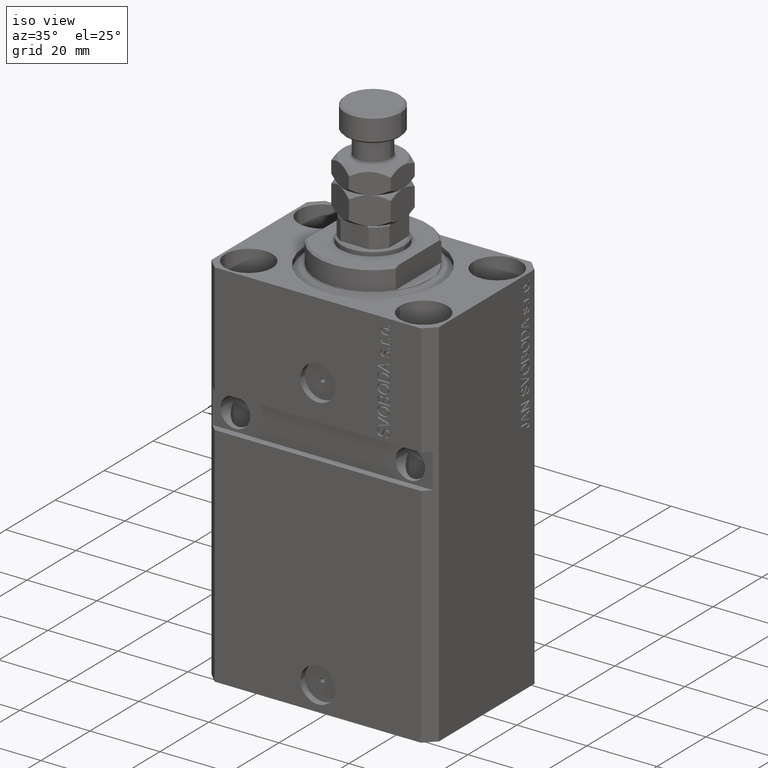
[diagram: clean part render]
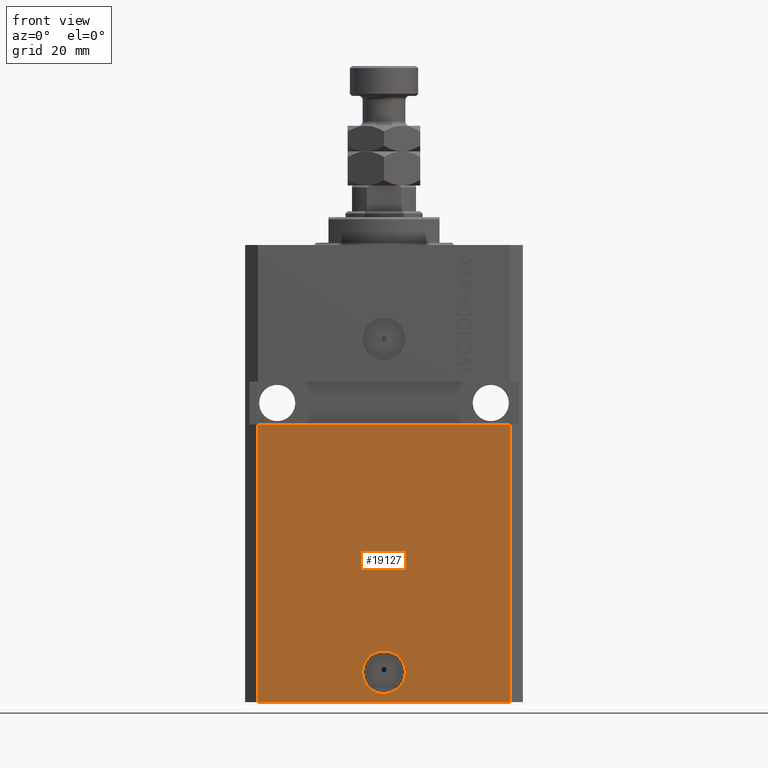
[diagram: tour spotlight — one face highlighted and labeled with its STEP entity id]
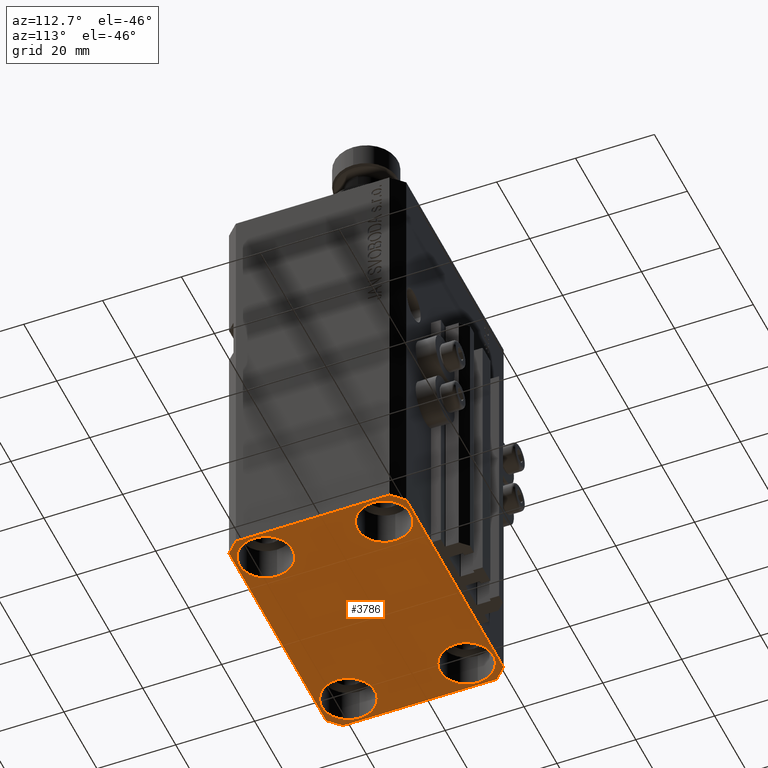
[diagram: tour spotlight — one face highlighted and labeled with its STEP entity id]
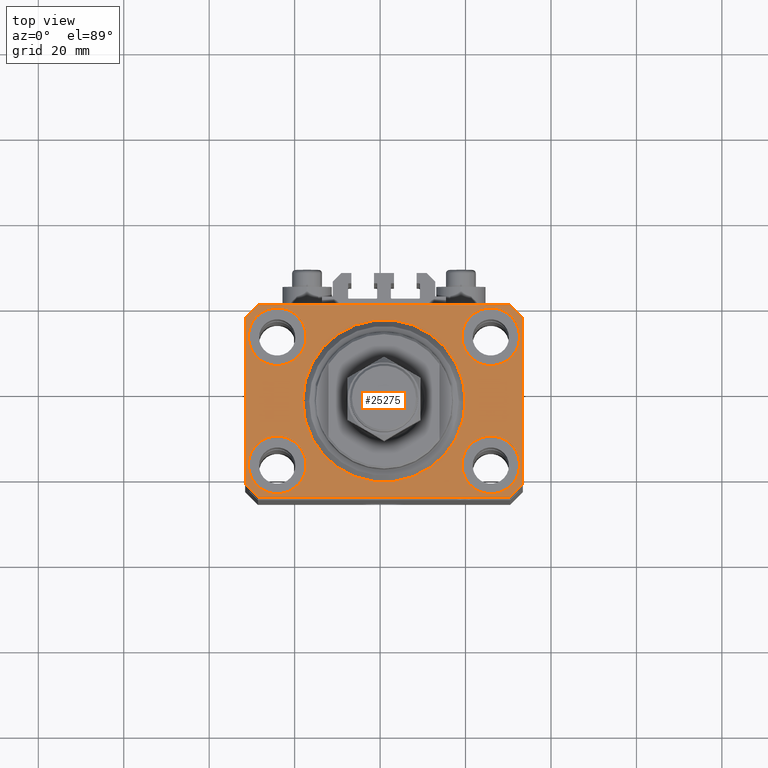
[diagram: tour spotlight — one face highlighted and labeled with its STEP entity id]
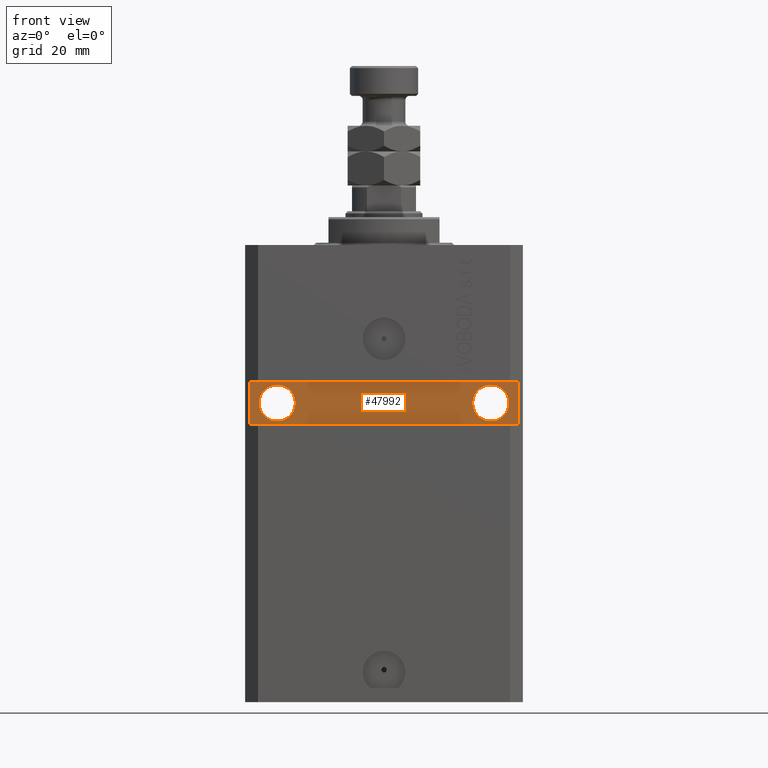
[diagram: tour spotlight — one face highlighted and labeled with its STEP entity id]
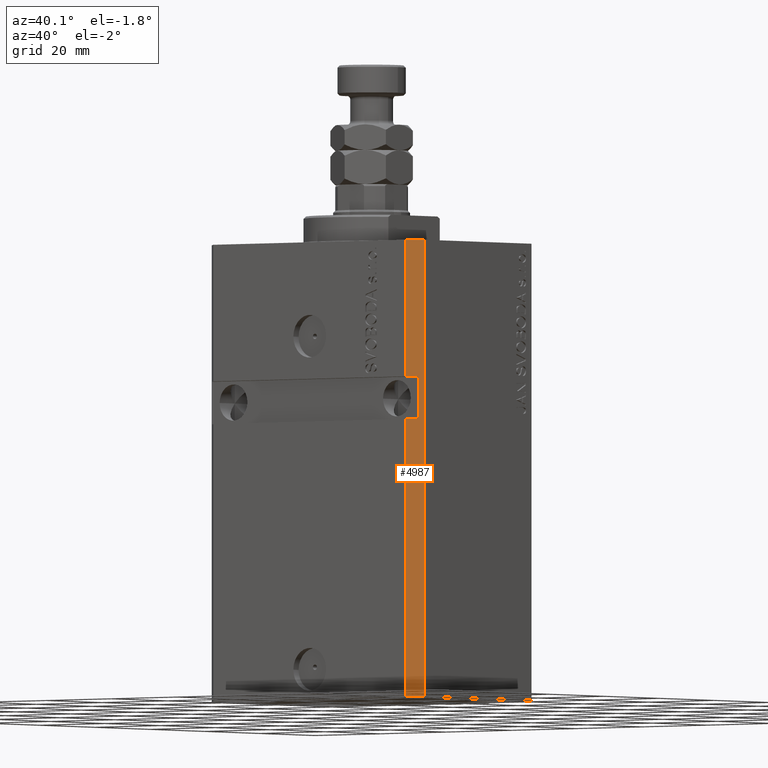
[diagram: tour spotlight — one face highlighted and labeled with its STEP entity id]
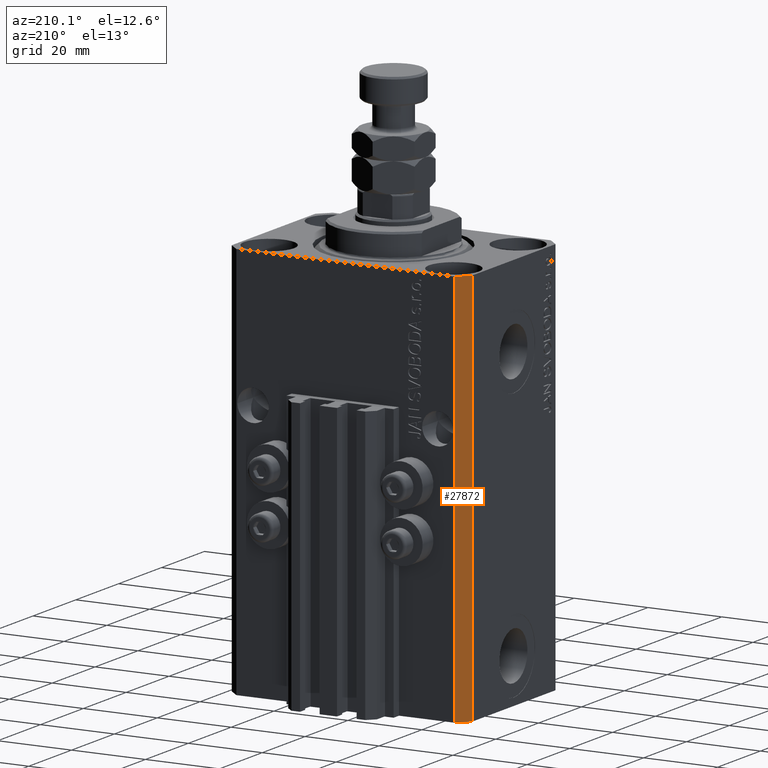
[diagram: tour spotlight — one face highlighted and labeled with its STEP entity id]
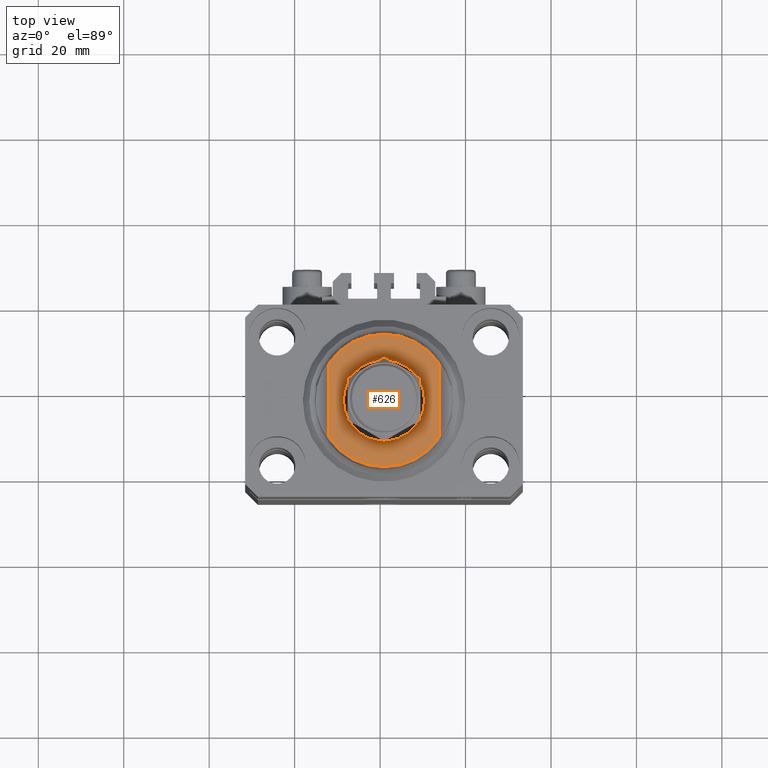
[diagram: tour spotlight — one face highlighted and labeled with its STEP entity id]
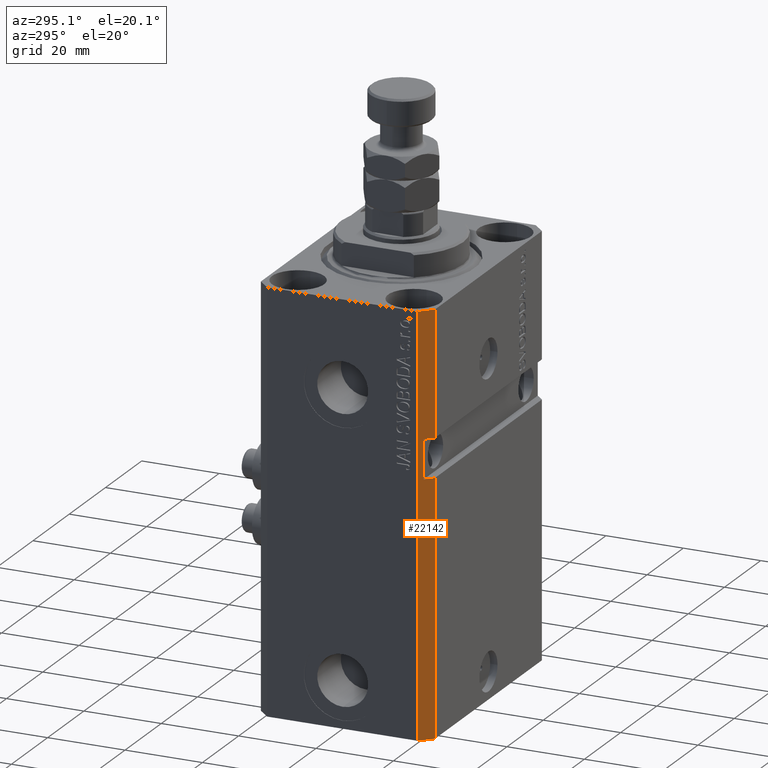
[diagram: tour spotlight — one face highlighted and labeled with its STEP entity id]
A machine part: a face-by-face anatomy tour. The part has 1119 B-rep faces; the first image is the clean iso view, then the 8 largest visible faces are spotlighted one at a time (largest first), each with its STEP entity span.

Face 1 — front view, entity #19127. In plain terms, the highlighted planar face has unit normal (0, -1, 0).
Definition (entity closure, byte-faithful):
#25 = EDGE_CURVE ( 'NONE', #38281, #33413, #42166, .T. ) ;
#1351 = LINE ( 'NONE', #31947, #32763 ) ;
#1925 = EDGE_CURVE ( 'NONE', #45138, #33413, #20716, .T. ) ;
#2029 = FACE_OUTER_BOUND ( 'NONE', #2823, .T. ) ;
#2816 = EDGE_CURVE ( 'NONE', #43977, #4943, #10225, .T. ) ;
#2823 = EDGE_LOOP ( 'NONE', ( #26663, #34010, #6631, #40306 ) ) ;
#2917 = DIRECTION ( 'NONE',  ( 1.176083712526788232E-16, -1.000000000000000000, 0.000000000000000000 ) ) ;
#3620 = AXIS2_PLACEMENT_3D ( 'NONE', #28186, #43004, #24245 ) ;
#4943 = VERTEX_POINT ( 'NONE', #41364 ) ;
#6610 = ORIENTED_EDGE ( 'NONE', *, *, #21915, .F. ) ;
#6631 = ORIENTED_EDGE ( 'NONE', *, *, #17645, .T. ) ;
#7059 = CARTESIAN_POINT ( 'NONE',  ( 29.49999999999650058, -22.49999999999949196, -41.99999999999998579 ) ) ;
#8112 = DIRECTION ( 'NONE',  ( 1.000000000000000000, 1.067522139062765303E-16, 1.067522139062765303E-16 ) ) ;
#9685 = FACE_BOUND ( 'NONE', #21582, .T. ) ;
#10183 = VECTOR ( 'NONE', #24154, 1000.000000000000000 ) ;
#10225 = CIRCLE ( 'NONE', #15740, 5.000000000000006217 ) ;
#11025 = CARTESIAN_POINT ( 'NONE',  ( -29.49999999999650413, -22.49999999999949907, -107.0000000000000000 ) ) ;
#12455 = AXIS2_PLACEMENT_3D ( 'NONE', #43840, #28774, #21384 ) ;
#15740 = AXIS2_PLACEMENT_3D ( 'NONE', #36725, #2917, #45355 ) ;
#16355 = CIRCLE ( 'NONE', #12455, 5.000000000000006217 ) ;
#17645 = EDGE_CURVE ( 'NONE', #35961, #45138, #37644, .T. ) ;
#17823 = EDGE_CURVE ( 'NONE', #35961, #38281, #1351, .T. ) ;
#18004 = VECTOR ( 'NONE', #8112, 1000.000000000000000 ) ;
#19127 = ADVANCED_FACE ( 'NONE', ( #9685, #2029 ), #32135, .T. ) ;
#19542 = CARTESIAN_POINT ( 'NONE',  ( -29.49999999999650413, -22.49999999999949907, -41.99999999999999289 ) ) ;
#19960 = CARTESIAN_POINT ( 'NONE',  ( -32.49999999999650413, -22.49999999999949907, -41.99999999999999289 ) ) ;
#20716 = LINE ( 'NONE', #42682, #10183 ) ;
#21384 = DIRECTION ( 'NONE',  ( 1.000000000000000000, 0.000000000000000000, 0.000000000000000000 ) ) ;
#21582 = EDGE_LOOP ( 'NONE', ( #32540, #6610 ) ) ;
#21915 = EDGE_CURVE ( 'NONE', #4943, #43977, #16355, .T. ) ;
#24154 = DIRECTION ( 'NONE',  ( 0.000000000000000000, 0.000000000000000000, 1.000000000000000000 ) ) ;
#24245 = DIRECTION ( 'NONE',  ( 1.000000000000000000, 1.176083712526788232E-16, 0.000000000000000000 ) ) ;
#26293 = DIRECTION ( 'NONE',  ( 1.000000000000000000, 1.176083712526788232E-16, 0.000000000000000000 ) ) ;
#26663 = ORIENTED_EDGE ( 'NONE', *, *, #25, .F. ) ;
#27757 = DIRECTION ( 'NONE',  ( 0.000000000000000000, 0.000000000000000000, 1.000000000000000000 ) ) ;
#28186 = CARTESIAN_POINT ( 'NONE',  ( -29.49999999999650413, -22.49999999999949907, -107.0000000000000000 ) ) ;
#28774 = DIRECTION ( 'NONE',  ( 1.176083712526788232E-16, -1.000000000000000000, 0.000000000000000000 ) ) ;
#31947 = CARTESIAN_POINT ( 'NONE',  ( -29.49999999999650413, -22.49999999999949907, -107.0000000000000000 ) ) ;
#32135 = PLANE ( 'NONE',  #3620 ) ;
#32540 = ORIENTED_EDGE ( 'NONE', *, *, #2816, .F. ) ;
#32763 = VECTOR ( 'NONE', #27757, 1000.000000000000000 ) ;
#33413 = VERTEX_POINT ( 'NONE', #7059 ) ;
#34010 = ORIENTED_EDGE ( 'NONE', *, *, #17823, .F. ) ;
#35961 = VERTEX_POINT ( 'NONE', #39204 ) ;
#36725 = CARTESIAN_POINT ( 'NONE',  ( 2.646188353185214061E-15, -22.49999999999949551, -99.99999999999998579 ) ) ;
#37009 = VECTOR ( 'NONE', #26293, 1000.000000000000000 ) ;
#37644 = LINE ( 'NONE', #11025, #37009 ) ;
#38281 = VERTEX_POINT ( 'NONE', #19542 ) ;
#39094 = CARTESIAN_POINT ( 'NONE',  ( 29.49999999999650413, -22.49999999999949196, -107.0000000000000000 ) ) ;
#39204 = CARTESIAN_POINT ( 'NONE',  ( -29.49999999999650413, -22.49999999999949907, -107.0000000000000000 ) ) ;
#40053 = CARTESIAN_POINT ( 'NONE',  ( 5.000000000000008882, -22.49999999999949551, -99.99999999999998579 ) ) ;
#40306 = ORIENTED_EDGE ( 'NONE', *, *, #1925, .T. ) ;
#41364 = CARTESIAN_POINT ( 'NONE',  ( -5.000000000000003553, -22.49999999999949551, -99.99999999999998579 ) ) ;
#42166 = LINE ( 'NONE', #19960, #18004 ) ;
#42682 = CARTESIAN_POINT ( 'NONE',  ( 29.49999999999650413, -22.49999999999949196, -107.0000000000000000 ) ) ;
#43004 = DIRECTION ( 'NONE',  ( 1.176083712526788232E-16, -1.000000000000000000, 0.000000000000000000 ) ) ;
#43840 = CARTESIAN_POINT ( 'NONE',  ( 2.646188353185214061E-15, -22.49999999999949551, -99.99999999999998579 ) ) ;
#43977 = VERTEX_POINT ( 'NONE', #40053 ) ;
#45138 = VERTEX_POINT ( 'NONE', #39094 ) ;
#45355 = DIRECTION ( 'NONE',  ( 1.000000000000000000, 0.000000000000000000, 0.000000000000000000 ) ) ;

Face 2 — auxiliary view, entity #3786. In plain terms, the highlighted planar face has unit normal (0, 0, 1).
Definition (entity closure, byte-faithful):
#649 = CIRCLE ( 'NONE', #21168, 6.750000000022533087 ) ;
#694 = CARTESIAN_POINT ( 'NONE',  ( -32.49999999999650413, 19.49999999999949907, -107.0000000000000000 ) ) ;
#853 = DIRECTION ( 'NONE',  ( -0.000000000000000000, -0.000000000000000000, 1.000000000000000000 ) ) ;
#1150 = DIRECTION ( 'NONE',  ( 1.334402673828349134E-14, 1.000000000000000000, 0.000000000000000000 ) ) ;
#1343 = VERTEX_POINT ( 'NONE', #19187 ) ;
#1506 = CARTESIAN_POINT ( 'NONE',  ( -18.24999999997747224, 15.00000000000000000, -107.0000000000000000 ) ) ;
#1633 = CARTESIAN_POINT ( 'NONE',  ( -32.49999999999650413, 19.49999999999949907, -107.0000000000000000 ) ) ;
#1689 = LINE ( 'NONE', #16754, #35445 ) ;
#1849 = EDGE_LOOP ( 'NONE', ( #48109, #18813 ) ) ;
#1872 = AXIS2_PLACEMENT_3D ( 'NONE', #5205, #20275, #24450 ) ;
#2190 = AXIS2_PLACEMENT_3D ( 'NONE', #31208, #24045, #35882 ) ;
#2299 = ORIENTED_EDGE ( 'NONE', *, *, #16974, .F. ) ;
#2421 = VERTEX_POINT ( 'NONE', #5523 ) ;
#2687 = EDGE_CURVE ( 'NONE', #29800, #5790, #30670, .T. ) ;
#3407 = FACE_OUTER_BOUND ( 'NONE', #9077, .T. ) ;
#3786 = ADVANCED_FACE ( 'NONE', ( #37219, #37455, #42330, #14763, #3407 ), #48329, .F. ) ;
#3890 = DIRECTION ( 'NONE',  ( 1.000000000000000000, 0.000000000000000000, -0.000000000000000000 ) ) ;
#4121 = CARTESIAN_POINT ( 'NONE',  ( -31.75000000002253842, 15.00000000000000000, -107.0000000000000000 ) ) ;
#4230 = ORIENTED_EDGE ( 'NONE', *, *, #17645, .F. ) ;
#4363 = EDGE_CURVE ( 'NONE', #31060, #20091, #649, .T. ) ;
#5205 = CARTESIAN_POINT ( 'NONE',  ( -25.00000000000000355, 15.00000000000000000, -107.0000000000000000 ) ) ;
#5523 = CARTESIAN_POINT ( 'NONE',  ( 29.49999999999707967, 22.49999999999951328, -107.0000000000000000 ) ) ;
#5790 = VERTEX_POINT ( 'NONE', #30739 ) ;
#5819 = CARTESIAN_POINT ( 'NONE',  ( 32.49999999999651124, -19.49999999999949196, -107.0000000000000000 ) ) ;
#6037 = VECTOR ( 'NONE', #22686, 1000.000000000000000 ) ;
#6180 = EDGE_CURVE ( 'NONE', #8314, #11901, #45310, .T. ) ;
#6569 = CIRCLE ( 'NONE', #20750, 6.749999999958452790 ) ;
#6683 = AXIS2_PLACEMENT_3D ( 'NONE', #16398, #853, #16155 ) ;
#7247 = CARTESIAN_POINT ( 'NONE',  ( 32.49999999999702993, 19.49999999999945999, -107.0000000000000000 ) ) ;
#7923 = EDGE_CURVE ( 'NONE', #11901, #8314, #28030, .T. ) ;
#8314 = VERTEX_POINT ( 'NONE', #8583 ) ;
#8414 = VECTOR ( 'NONE', #1150, 1000.000000000000000 ) ;
#8583 = CARTESIAN_POINT ( 'NONE',  ( 18.25000000002253842, -15.00000000000000000, -107.0000000000000000 ) ) ;
#8584 = AXIS2_PLACEMENT_3D ( 'NONE', #34057, #46388, #23183 ) ;
#8945 = CIRCLE ( 'NONE', #1872, 6.750000000022533087 ) ;
#9043 = LINE ( 'NONE', #42624, #30178 ) ;
#9077 = EDGE_LOOP ( 'NONE', ( #2299, #19034, #46622, #46412, #4230, #46440, #10900, #16723 ) ) ;
#9843 = EDGE_CURVE ( 'NONE', #25213, #2421, #23405, .T. ) ;
#10103 = VERTEX_POINT ( 'NONE', #1633 ) ;
#10900 = ORIENTED_EDGE ( 'NONE', *, *, #42466, .F. ) ;
#11025 = CARTESIAN_POINT ( 'NONE',  ( -29.49999999999650413, -22.49999999999949907, -107.0000000000000000 ) ) ;
#11038 = AXIS2_PLACEMENT_3D ( 'NONE', #26345, #14524, #3890 ) ;
#11326 = CARTESIAN_POINT ( 'NONE',  ( -29.49999999999650413, 22.49999999999949907, -107.0000000000000000 ) ) ;
#11901 = VERTEX_POINT ( 'NONE', #14908 ) ;
#13548 = CARTESIAN_POINT ( 'NONE',  ( -31.75000000004154899, -15.00000000000000000, -107.0000000000000000 ) ) ;
#13784 = ORIENTED_EDGE ( 'NONE', *, *, #4363, .T. ) ;
#14524 = DIRECTION ( 'NONE',  ( 0.000000000000000000, 0.000000000000000000, 1.000000000000000000 ) ) ;
#14763 = FACE_BOUND ( 'NONE', #27245, .T. ) ;
#14908 = CARTESIAN_POINT ( 'NONE',  ( 31.74999999997746869, -15.00000000000000000, -107.0000000000000000 ) ) ;
#15092 = DIRECTION ( 'NONE',  ( -0.000000000000000000, -0.000000000000000000, 1.000000000000000000 ) ) ;
#15263 = CARTESIAN_POINT ( 'NONE',  ( -18.24999999995845812, -15.00000000000000000, -107.0000000000000000 ) ) ;
#15435 = VERTEX_POINT ( 'NONE', #47161 ) ;
#15556 = DIRECTION ( 'NONE',  ( 1.000000000000000000, 0.000000000000000000, 0.000000000000000000 ) ) ;
#15828 = CARTESIAN_POINT ( 'NONE',  ( 24.99999999999999645, 15.00000000000000888, -107.0000000000000000 ) ) ;
#15996 = LINE ( 'NONE', #694, #39661 ) ;
#16155 = DIRECTION ( 'NONE',  ( 1.000000000000000000, 0.000000000000000000, 0.000000000000000000 ) ) ;
#16398 = CARTESIAN_POINT ( 'NONE',  ( 25.00000000000000355, -15.00000000000000000, -107.0000000000000000 ) ) ;
#16723 = ORIENTED_EDGE ( 'NONE', *, *, #46933, .F. ) ;
#16754 = CARTESIAN_POINT ( 'NONE',  ( -32.49999999999650413, -19.49999999999949907, -107.0000000000000000 ) ) ;
#16974 = EDGE_CURVE ( 'NONE', #2421, #15435, #40806, .T. ) ;
#17300 = ORIENTED_EDGE ( 'NONE', *, *, #42248, .T. ) ;
#17645 = EDGE_CURVE ( 'NONE', #35961, #45138, #37644, .T. ) ;
#18691 = CARTESIAN_POINT ( 'NONE',  ( -25.00000000000000355, -15.00000000000000000, -107.0000000000000000 ) ) ;
#18813 = ORIENTED_EDGE ( 'NONE', *, *, #7923, .T. ) ;
#19034 = ORIENTED_EDGE ( 'NONE', *, *, #9843, .F. ) ;
#19187 = CARTESIAN_POINT ( 'NONE',  ( 32.49999999999651124, -19.49999999999949196, -107.0000000000000000 ) ) ;
#19429 = DIRECTION ( 'NONE',  ( 0.7071067811865483499, 0.7071067811865466846, 0.000000000000000000 ) ) ;
#19471 = CARTESIAN_POINT ( 'NONE',  ( 32.49999999999702993, 19.49999999999945999, -107.0000000000000000 ) ) ;
#20016 = CARTESIAN_POINT ( 'NONE',  ( 18.25000000004154543, 15.00000000000000888, -107.0000000000000000 ) ) ;
#20091 = VERTEX_POINT ( 'NONE', #1506 ) ;
#20275 = DIRECTION ( 'NONE',  ( -0.000000000000000000, -0.000000000000000000, 1.000000000000000000 ) ) ;
#20406 = LINE ( 'NONE', #5819, #8414 ) ;
#20750 = AXIS2_PLACEMENT_3D ( 'NONE', #15828, #24196, #42958 ) ;
#20773 = EDGE_CURVE ( 'NONE', #1343, #25213, #20406, .T. ) ;
#21168 = AXIS2_PLACEMENT_3D ( 'NONE', #34301, #26657, #15556 ) ;
#21904 = DIRECTION ( 'NONE',  ( 1.000000000000000000, 0.000000000000000000, 0.000000000000000000 ) ) ;
#22082 = EDGE_CURVE ( 'NONE', #27799, #46885, #43164, .T. ) ;
#22359 = CIRCLE ( 'NONE', #41288, 6.750000000041541881 ) ;
#22686 = DIRECTION ( 'NONE',  ( -0.7071067811865352493, 0.7071067811865597852, 0.000000000000000000 ) ) ;
#23172 = ORIENTED_EDGE ( 'NONE', *, *, #40643, .T. ) ;
#23183 = DIRECTION ( 'NONE',  ( 1.000000000000000000, 0.000000000000000000, 0.000000000000000000 ) ) ;
#23405 = LINE ( 'NONE', #19471, #6037 ) ;
#23418 = EDGE_LOOP ( 'NONE', ( #26202, #23172 ) ) ;
#24045 = DIRECTION ( 'NONE',  ( -0.000000000000000000, -0.000000000000000000, 1.000000000000000000 ) ) ;
#24196 = DIRECTION ( 'NONE',  ( -0.000000000000000000, -0.000000000000000000, 1.000000000000000000 ) ) ;
#24450 = DIRECTION ( 'NONE',  ( 1.000000000000000000, 0.000000000000000000, 0.000000000000000000 ) ) ;
#25213 = VERTEX_POINT ( 'NONE', #7247 ) ;
#26202 = ORIENTED_EDGE ( 'NONE', *, *, #22082, .T. ) ;
#26293 = DIRECTION ( 'NONE',  ( 1.000000000000000000, 1.176083712526788232E-16, 0.000000000000000000 ) ) ;
#26345 = CARTESIAN_POINT ( 'NONE',  ( 0.000000000000000000, 0.000000000000000000, -107.0000000000000000 ) ) ;
#26614 = ORIENTED_EDGE ( 'NONE', *, *, #40038, .T. ) ;
#26657 = DIRECTION ( 'NONE',  ( -0.000000000000000000, -0.000000000000000000, 1.000000000000000000 ) ) ;
#27131 = EDGE_CURVE ( 'NONE', #44919, #35961, #1689, .T. ) ;
#27245 = EDGE_LOOP ( 'NONE', ( #13784, #26614 ) ) ;
#27799 = VERTEX_POINT ( 'NONE', #13548 ) ;
#28030 = CIRCLE ( 'NONE', #29620, 6.749999999977465137 ) ;
#29212 = EDGE_LOOP ( 'NONE', ( #48676, #17300 ) ) ;
#29620 = AXIS2_PLACEMENT_3D ( 'NONE', #37530, #15092, #41734 ) ;
#29800 = VERTEX_POINT ( 'NONE', #20016 ) ;
#30080 = VECTOR ( 'NONE', #36377, 1000.000000000000000 ) ;
#30178 = VECTOR ( 'NONE', #19429, 1000.000000000000000 ) ;
#30670 = CIRCLE ( 'NONE', #8584, 6.749999999958452790 ) ;
#30739 = CARTESIAN_POINT ( 'NONE',  ( 31.74999999995845101, 15.00000000000000888, -107.0000000000000000 ) ) ;
#31060 = VERTEX_POINT ( 'NONE', #4121 ) ;
#31208 = CARTESIAN_POINT ( 'NONE',  ( -25.00000000000000355, -15.00000000000000000, -107.0000000000000000 ) ) ;
#31288 = DIRECTION ( 'NONE',  ( 0.000000000000000000, -1.000000000000000000, 0.000000000000000000 ) ) ;
#31798 = DIRECTION ( 'NONE',  ( 0.7071067811865474617, -0.7071067811865474617, 0.000000000000000000 ) ) ;
#34057 = CARTESIAN_POINT ( 'NONE',  ( 24.99999999999999645, 15.00000000000000888, -107.0000000000000000 ) ) ;
#34301 = CARTESIAN_POINT ( 'NONE',  ( -25.00000000000000355, 15.00000000000000000, -107.0000000000000000 ) ) ;
#35445 = VECTOR ( 'NONE', #31798, 1000.000000000000114 ) ;
#35637 = CARTESIAN_POINT ( 'NONE',  ( -32.49999999999650413, -19.49999999999949907, -107.0000000000000000 ) ) ;
#35882 = DIRECTION ( 'NONE',  ( 1.000000000000000000, 0.000000000000000000, 0.000000000000000000 ) ) ;
#35961 = VERTEX_POINT ( 'NONE', #39204 ) ;
#36377 = DIRECTION ( 'NONE',  ( -1.000000000000000000, -2.352167425053553784E-16, 0.000000000000000000 ) ) ;
#37009 = VECTOR ( 'NONE', #26293, 1000.000000000000000 ) ;
#37219 = FACE_BOUND ( 'NONE', #23418, .T. ) ;
#37455 = FACE_BOUND ( 'NONE', #1849, .T. ) ;
#37530 = CARTESIAN_POINT ( 'NONE',  ( 25.00000000000000355, -15.00000000000000000, -107.0000000000000000 ) ) ;
#37644 = LINE ( 'NONE', #11025, #37009 ) ;
#37952 = DIRECTION ( 'NONE',  ( -0.7071067811865474617, -0.7071067811865474617, 0.000000000000000000 ) ) ;
#39094 = CARTESIAN_POINT ( 'NONE',  ( 29.49999999999650413, -22.49999999999949196, -107.0000000000000000 ) ) ;
#39204 = CARTESIAN_POINT ( 'NONE',  ( -29.49999999999650413, -22.49999999999949907, -107.0000000000000000 ) ) ;
#39661 = VECTOR ( 'NONE', #31288, 1000.000000000000000 ) ;
#40038 = EDGE_CURVE ( 'NONE', #20091, #31060, #8945, .T. ) ;
#40643 = EDGE_CURVE ( 'NONE', #46885, #27799, #22359, .T. ) ;
#40806 = LINE ( 'NONE', #43779, #30080 ) ;
#41288 = AXIS2_PLACEMENT_3D ( 'NONE', #18691, #45098, #21904 ) ;
#41701 = EDGE_CURVE ( 'NONE', #45138, #1343, #9043, .T. ) ;
#41734 = DIRECTION ( 'NONE',  ( 1.000000000000000000, 0.000000000000000000, 0.000000000000000000 ) ) ;
#41903 = LINE ( 'NONE', #11326, #45442 ) ;
#42248 = EDGE_CURVE ( 'NONE', #5790, #29800, #6569, .T. ) ;
#42330 = FACE_BOUND ( 'NONE', #29212, .T. ) ;
#42466 = EDGE_CURVE ( 'NONE', #10103, #44919, #15996, .T. ) ;
#42624 = CARTESIAN_POINT ( 'NONE',  ( 29.49999999999650413, -22.49999999999949196, -107.0000000000000000 ) ) ;
#42958 = DIRECTION ( 'NONE',  ( 1.000000000000000000, 0.000000000000000000, 0.000000000000000000 ) ) ;
#43164 = CIRCLE ( 'NONE', #2190, 6.750000000041541881 ) ;
#43779 = CARTESIAN_POINT ( 'NONE',  ( 29.49999999999707967, 22.49999999999951328, -107.0000000000000000 ) ) ;
#44919 = VERTEX_POINT ( 'NONE', #35637 ) ;
#45098 = DIRECTION ( 'NONE',  ( -0.000000000000000000, -0.000000000000000000, 1.000000000000000000 ) ) ;
#45138 = VERTEX_POINT ( 'NONE', #39094 ) ;
#45310 = CIRCLE ( 'NONE', #6683, 6.749999999977465137 ) ;
#45442 = VECTOR ( 'NONE', #37952, 1000.000000000000114 ) ;
#46388 = DIRECTION ( 'NONE',  ( -0.000000000000000000, -0.000000000000000000, 1.000000000000000000 ) ) ;
#46412 = ORIENTED_EDGE ( 'NONE', *, *, #41701, .F. ) ;
#46440 = ORIENTED_EDGE ( 'NONE', *, *, #27131, .F. ) ;
#46622 = ORIENTED_EDGE ( 'NONE', *, *, #20773, .F. ) ;
#46885 = VERTEX_POINT ( 'NONE', #15263 ) ;
#46933 = EDGE_CURVE ( 'NONE', #15435, #10103, #41903, .T. ) ;
#47161 = CARTESIAN_POINT ( 'NONE',  ( -29.49999999999650413, 22.49999999999949907, -107.0000000000000000 ) ) ;
#48109 = ORIENTED_EDGE ( 'NONE', *, *, #6180, .T. ) ;
#48329 = PLANE ( 'NONE',  #11038 ) ;
#48676 = ORIENTED_EDGE ( 'NONE', *, *, #2687, .T. ) ;

Face 3 — top view, entity #25275. In plain terms, the highlighted planar face has unit normal (0, 0, 1).
Definition (entity closure, byte-faithful):
#510 = AXIS2_PLACEMENT_3D ( 'NONE', #25415, #37011, #48854 ) ;
#987 = VERTEX_POINT ( 'NONE', #40721 ) ;
#1227 = ORIENTED_EDGE ( 'NONE', *, *, #3697, .T. ) ;
#1610 = DIRECTION ( 'NONE',  ( -1.000000000000000000, -2.352167425053553784E-16, 0.000000000000000000 ) ) ;
#3064 = CARTESIAN_POINT ( 'NONE',  ( 18.25000000002253842, -15.00000000000000000, 0.000000000000000000 ) ) ;
#3421 = CARTESIAN_POINT ( 'NONE',  ( 29.49999999999707967, 22.49999999999951328, 0.000000000000000000 ) ) ;
#3545 = DIRECTION ( 'NONE',  ( 0.000000000000000000, 0.000000000000000000, 1.000000000000000000 ) ) ;
#3697 = EDGE_CURVE ( 'NONE', #12005, #987, #10586, .T. ) ;
#3902 = CARTESIAN_POINT ( 'NONE',  ( 32.49999999999702993, 19.49999999999945999, 0.000000000000000000 ) ) ;
#4578 = EDGE_CURVE ( 'NONE', #987, #32467, #27629, .T. ) ;
#4955 = CARTESIAN_POINT ( 'NONE',  ( 29.49999999999707967, 22.49999999999951328, 0.000000000000000000 ) ) ;
#5004 = CARTESIAN_POINT ( 'NONE',  ( -29.49999999999650413, -22.49999999999949907, 0.000000000000000000 ) ) ;
#5102 = DIRECTION ( 'NONE',  ( 0.000000000000000000, -1.000000000000000000, 0.000000000000000000 ) ) ;
#5433 = CARTESIAN_POINT ( 'NONE',  ( -29.49999999999650413, -22.49999999999949907, 0.000000000000000000 ) ) ;
#5438 = DIRECTION ( 'NONE',  ( 0.000000000000000000, 0.000000000000000000, 1.000000000000000000 ) ) ;
#5824 = ORIENTED_EDGE ( 'NONE', *, *, #15948, .T. ) ;
#6019 = DIRECTION ( 'NONE',  ( 0.000000000000000000, 0.000000000000000000, 1.000000000000000000 ) ) ;
#6603 = EDGE_CURVE ( 'NONE', #19524, #30904, #12277, .T. ) ;
#7078 = AXIS2_PLACEMENT_3D ( 'NONE', #44286, #6019, #36631 ) ;
#7575 = CARTESIAN_POINT ( 'NONE',  ( 25.00000000000000355, -15.00000000000000000, 0.000000000000000000 ) ) ;
#7766 = VECTOR ( 'NONE', #20239, 1000.000000000000000 ) ;
#8117 = ORIENTED_EDGE ( 'NONE', *, *, #6603, .T. ) ;
#8919 = VERTEX_POINT ( 'NONE', #36036 ) ;
#9115 = CARTESIAN_POINT ( 'NONE',  ( 32.49999999999651124, -19.49999999999949196, 0.000000000000000000 ) ) ;
#9271 = AXIS2_PLACEMENT_3D ( 'NONE', #38867, #46756, #16899 ) ;
#9751 = EDGE_CURVE ( 'NONE', #12539, #30613, #19440, .T. ) ;
#9859 = CARTESIAN_POINT ( 'NONE',  ( 19.00000000000000000, 0.000000000000000000, 0.000000000000000000 ) ) ;
#10374 = ORIENTED_EDGE ( 'NONE', *, *, #37607, .F. ) ;
#10376 = CIRCLE ( 'NONE', #13510, 6.749999999977465137 ) ;
#10539 = ORIENTED_EDGE ( 'NONE', *, *, #4578, .T. ) ;
#10586 = LINE ( 'NONE', #45113, #28347 ) ;
#11081 = CARTESIAN_POINT ( 'NONE',  ( 18.25000000004154543, 15.00000000000000888, 0.000000000000000000 ) ) ;
#11224 = FACE_BOUND ( 'NONE', #16169, .T. ) ;
#11532 = DIRECTION ( 'NONE',  ( 1.000000000000000000, 0.000000000000000000, 0.000000000000000000 ) ) ;
#12005 = VERTEX_POINT ( 'NONE', #34868 ) ;
#12277 = LINE ( 'NONE', #19923, #31170 ) ;
#12375 = EDGE_LOOP ( 'NONE', ( #28256, #19365 ) ) ;
#12539 = VERTEX_POINT ( 'NONE', #3064 ) ;
#12584 = EDGE_CURVE ( 'NONE', #24502, #41217, #29952, .T. ) ;
#12704 = CIRCLE ( 'NONE', #43409, 6.750000000022533087 ) ;
#12739 = VECTOR ( 'NONE', #37443, 1000.000000000000114 ) ;
#12745 = EDGE_CURVE ( 'NONE', #14359, #12005, #23759, .T. ) ;
#13012 = EDGE_CURVE ( 'NONE', #41217, #24502, #28362, .T. ) ;
#13510 = AXIS2_PLACEMENT_3D ( 'NONE', #7575, #30042, #15248 ) ;
#14359 = VERTEX_POINT ( 'NONE', #5433 ) ;
#14855 = EDGE_CURVE ( 'NONE', #8919, #21812, #12704, .T. ) ;
#14881 = CARTESIAN_POINT ( 'NONE',  ( 0.000000000000000000, 0.000000000000000000, 0.000000000000000000 ) ) ;
#15161 = FACE_BOUND ( 'NONE', #24491, .T. ) ;
#15248 = DIRECTION ( 'NONE',  ( 1.000000000000000000, 0.000000000000000000, 0.000000000000000000 ) ) ;
#15472 = CARTESIAN_POINT ( 'NONE',  ( -25.00000000000000355, 15.00000000000000000, 0.000000000000000000 ) ) ;
#15795 = ORIENTED_EDGE ( 'NONE', *, *, #15861, .F. ) ;
#15861 = EDGE_CURVE ( 'NONE', #30613, #12539, #10376, .T. ) ;
#15923 = DIRECTION ( 'NONE',  ( 0.7071067811865483499, 0.7071067811865466846, 0.000000000000000000 ) ) ;
#15948 = EDGE_CURVE ( 'NONE', #30904, #14359, #23117, .T. ) ;
#15952 = DIRECTION ( 'NONE',  ( 0.000000000000000000, 0.000000000000000000, 1.000000000000000000 ) ) ;
#16055 = CARTESIAN_POINT ( 'NONE',  ( -18.24999999995846167, -15.00000000000000000, 0.000000000000000000 ) ) ;
#16169 = EDGE_LOOP ( 'NONE', ( #25232, #33265 ) ) ;
#16389 = CIRCLE ( 'NONE', #9271, 6.749999999958452790 ) ;
#16770 = VERTEX_POINT ( 'NONE', #38946 ) ;
#16899 = DIRECTION ( 'NONE',  ( 1.000000000000000000, 0.000000000000000000, 0.000000000000000000 ) ) ;
#18128 = AXIS2_PLACEMENT_3D ( 'NONE', #14881, #18823, #22997 ) ;
#18264 = ORIENTED_EDGE ( 'NONE', *, *, #48291, .T. ) ;
#18549 = VERTEX_POINT ( 'NONE', #9859 ) ;
#18677 = EDGE_CURVE ( 'NONE', #32467, #42179, #23821, .T. ) ;
#18766 = EDGE_CURVE ( 'NONE', #42179, #20359, #37232, .T. ) ;
#18823 = DIRECTION ( 'NONE',  ( 0.000000000000000000, 0.000000000000000000, 1.000000000000000000 ) ) ;
#19153 = EDGE_LOOP ( 'NONE', ( #44997, #10374 ) ) ;
#19365 = ORIENTED_EDGE ( 'NONE', *, *, #13012, .F. ) ;
#19440 = CIRCLE ( 'NONE', #510, 6.749999999977465137 ) ;
#19524 = VERTEX_POINT ( 'NONE', #42708 ) ;
#19659 = EDGE_CURVE ( 'NONE', #16770, #18549, #32028, .T. ) ;
#19923 = CARTESIAN_POINT ( 'NONE',  ( -32.49999999999650413, 19.49999999999949907, 0.000000000000000000 ) ) ;
#20054 = DIRECTION ( 'NONE',  ( -0.7071067811865474617, -0.7071067811865474617, 0.000000000000000000 ) ) ;
#20239 = DIRECTION ( 'NONE',  ( 1.334402673828349134E-14, 1.000000000000000000, 0.000000000000000000 ) ) ;
#20359 = VERTEX_POINT ( 'NONE', #45888 ) ;
#20801 = ORIENTED_EDGE ( 'NONE', *, *, #35638, .F. ) ;
#21695 = ORIENTED_EDGE ( 'NONE', *, *, #9751, .F. ) ;
#21812 = VERTEX_POINT ( 'NONE', #35940 ) ;
#22175 = EDGE_CURVE ( 'NONE', #33137, #34946, #16389, .T. ) ;
#22304 = FACE_OUTER_BOUND ( 'NONE', #43545, .T. ) ;
#22544 = CARTESIAN_POINT ( 'NONE',  ( 0.000000000000000000, 0.000000000000000000, 0.000000000000000000 ) ) ;
#22565 = ORIENTED_EDGE ( 'NONE', *, *, #22175, .F. ) ;
#22997 = DIRECTION ( 'NONE',  ( 1.000000000000000000, 0.000000000000000000, 0.000000000000000000 ) ) ;
#23117 = LINE ( 'NONE', #34471, #12739 ) ;
#23320 = VECTOR ( 'NONE', #1610, 1000.000000000000000 ) ;
#23530 = CIRCLE ( 'NONE', #18128, 19.00000000000000000 ) ;
#23759 = LINE ( 'NONE', #5004, #24415 ) ;
#23821 = LINE ( 'NONE', #3902, #34345 ) ;
#23844 = AXIS2_PLACEMENT_3D ( 'NONE', #15472, #15952, #11532 ) ;
#24415 = VECTOR ( 'NONE', #27704, 1000.000000000000000 ) ;
#24491 = EDGE_LOOP ( 'NONE', ( #20801, #22565 ) ) ;
#24502 = VERTEX_POINT ( 'NONE', #16055 ) ;
#24865 = CARTESIAN_POINT ( 'NONE',  ( -25.00000000000000355, 15.00000000000000000, 0.000000000000000000 ) ) ;
#24907 = DIRECTION ( 'NONE',  ( 0.000000000000000000, 0.000000000000000000, 1.000000000000000000 ) ) ;
#25232 = ORIENTED_EDGE ( 'NONE', *, *, #27412, .F. ) ;
#25275 = ADVANCED_FACE ( 'NONE', ( #29959, #45018, #15161, #48234, #11224, #22304 ), #33175, .T. ) ;
#25415 = CARTESIAN_POINT ( 'NONE',  ( 25.00000000000000355, -15.00000000000000000, 0.000000000000000000 ) ) ;
#26428 = DIRECTION ( 'NONE',  ( 1.000000000000000000, 0.000000000000000000, 0.000000000000000000 ) ) ;
#26672 = DIRECTION ( 'NONE',  ( 0.000000000000000000, 0.000000000000000000, 1.000000000000000000 ) ) ;
#27412 = EDGE_CURVE ( 'NONE', #18549, #16770, #23530, .T. ) ;
#27629 = LINE ( 'NONE', #9115, #7766 ) ;
#27704 = DIRECTION ( 'NONE',  ( 1.000000000000000000, 1.176083712526788232E-16, 0.000000000000000000 ) ) ;
#28165 = VECTOR ( 'NONE', #20054, 1000.000000000000114 ) ;
#28256 = ORIENTED_EDGE ( 'NONE', *, *, #12584, .F. ) ;
#28347 = VECTOR ( 'NONE', #15923, 1000.000000000000000 ) ;
#28362 = CIRCLE ( 'NONE', #38629, 6.750000000041541881 ) ;
#29577 = ORIENTED_EDGE ( 'NONE', *, *, #18677, .T. ) ;
#29828 = CARTESIAN_POINT ( 'NONE',  ( 0.000000000000000000, 0.000000000000000000, 0.000000000000000000 ) ) ;
#29871 = AXIS2_PLACEMENT_3D ( 'NONE', #22544, #3545, #30195 ) ;
#29930 = CARTESIAN_POINT ( 'NONE',  ( 32.49999999999702993, 19.49999999999945999, 0.000000000000000000 ) ) ;
#29952 = CIRCLE ( 'NONE', #7078, 6.750000000041541881 ) ;
#29959 = FACE_BOUND ( 'NONE', #12375, .T. ) ;
#30042 = DIRECTION ( 'NONE',  ( 0.000000000000000000, 0.000000000000000000, 1.000000000000000000 ) ) ;
#30195 = DIRECTION ( 'NONE',  ( 1.000000000000000000, 0.000000000000000000, -0.000000000000000000 ) ) ;
#30613 = VERTEX_POINT ( 'NONE', #41262 ) ;
#30904 = VERTEX_POINT ( 'NONE', #43646 ) ;
#31147 = CARTESIAN_POINT ( 'NONE',  ( -29.49999999999650413, 22.49999999999949907, 0.000000000000000000 ) ) ;
#31170 = VECTOR ( 'NONE', #5102, 1000.000000000000000 ) ;
#31858 = DIRECTION ( 'NONE',  ( 1.000000000000000000, 0.000000000000000000, 0.000000000000000000 ) ) ;
#32028 = CIRCLE ( 'NONE', #43839, 19.00000000000000000 ) ;
#32467 = VERTEX_POINT ( 'NONE', #29930 ) ;
#33137 = VERTEX_POINT ( 'NONE', #11081 ) ;
#33175 = PLANE ( 'NONE',  #29871 ) ;
#33265 = ORIENTED_EDGE ( 'NONE', *, *, #19659, .F. ) ;
#33870 = EDGE_LOOP ( 'NONE', ( #15795, #21695 ) ) ;
#34345 = VECTOR ( 'NONE', #46289, 1000.000000000000000 ) ;
#34444 = ORIENTED_EDGE ( 'NONE', *, *, #18766, .T. ) ;
#34471 = CARTESIAN_POINT ( 'NONE',  ( -32.49999999999650413, -19.49999999999949907, 0.000000000000000000 ) ) ;
#34868 = CARTESIAN_POINT ( 'NONE',  ( 29.49999999999650413, -22.49999999999949196, 0.000000000000000000 ) ) ;
#34946 = VERTEX_POINT ( 'NONE', #41687 ) ;
#35638 = EDGE_CURVE ( 'NONE', #34946, #33137, #44248, .T. ) ;
#35940 = CARTESIAN_POINT ( 'NONE',  ( -31.75000000002253842, 15.00000000000000000, 0.000000000000000000 ) ) ;
#36036 = CARTESIAN_POINT ( 'NONE',  ( -18.24999999997747224, 15.00000000000000000, 0.000000000000000000 ) ) ;
#36368 = CARTESIAN_POINT ( 'NONE',  ( -31.75000000004154899, -15.00000000000000000, 0.000000000000000000 ) ) ;
#36631 = DIRECTION ( 'NONE',  ( 1.000000000000000000, 0.000000000000000000, 0.000000000000000000 ) ) ;
#37011 = DIRECTION ( 'NONE',  ( 0.000000000000000000, 0.000000000000000000, 1.000000000000000000 ) ) ;
#37232 = LINE ( 'NONE', #3421, #23320 ) ;
#37443 = DIRECTION ( 'NONE',  ( 0.7071067811865474617, -0.7071067811865474617, 0.000000000000000000 ) ) ;
#37535 = CARTESIAN_POINT ( 'NONE',  ( -25.00000000000000355, -15.00000000000000000, 0.000000000000000000 ) ) ;
#37607 = EDGE_CURVE ( 'NONE', #21812, #8919, #45127, .T. ) ;
#38629 = AXIS2_PLACEMENT_3D ( 'NONE', #37535, #26672, #26428 ) ;
#38867 = CARTESIAN_POINT ( 'NONE',  ( 24.99999999999999645, 15.00000000000000888, 0.000000000000000000 ) ) ;
#38946 = CARTESIAN_POINT ( 'NONE',  ( -19.00000000000000000, 2.326828918379970970E-15, 0.000000000000000000 ) ) ;
#39264 = CARTESIAN_POINT ( 'NONE',  ( 24.99999999999999645, 15.00000000000000888, 0.000000000000000000 ) ) ;
#39926 = DIRECTION ( 'NONE',  ( 0.000000000000000000, 0.000000000000000000, 1.000000000000000000 ) ) ;
#40342 = AXIS2_PLACEMENT_3D ( 'NONE', #39264, #5438, #31858 ) ;
#40721 = CARTESIAN_POINT ( 'NONE',  ( 32.49999999999651124, -19.49999999999949196, 0.000000000000000000 ) ) ;
#41217 = VERTEX_POINT ( 'NONE', #36368 ) ;
#41262 = CARTESIAN_POINT ( 'NONE',  ( 31.74999999997746869, -15.00000000000000000, 0.000000000000000000 ) ) ;
#41687 = CARTESIAN_POINT ( 'NONE',  ( 31.74999999995845101, 15.00000000000000888, 0.000000000000000000 ) ) ;
#42179 = VERTEX_POINT ( 'NONE', #4955 ) ;
#42708 = CARTESIAN_POINT ( 'NONE',  ( -32.49999999999650413, 19.49999999999949907, 0.000000000000000000 ) ) ;
#43324 = ORIENTED_EDGE ( 'NONE', *, *, #12745, .T. ) ;
#43409 = AXIS2_PLACEMENT_3D ( 'NONE', #24865, #39926, #47577 ) ;
#43545 = EDGE_LOOP ( 'NONE', ( #34444, #18264, #8117, #5824, #43324, #1227, #10539, #29577 ) ) ;
#43646 = CARTESIAN_POINT ( 'NONE',  ( -32.49999999999650413, -19.49999999999949907, 0.000000000000000000 ) ) ;
#43839 = AXIS2_PLACEMENT_3D ( 'NONE', #29828, #24907, #43919 ) ;
#43919 = DIRECTION ( 'NONE',  ( 1.000000000000000000, 0.000000000000000000, 0.000000000000000000 ) ) ;
#44248 = CIRCLE ( 'NONE', #40342, 6.749999999958452790 ) ;
#44286 = CARTESIAN_POINT ( 'NONE',  ( -25.00000000000000355, -15.00000000000000000, 0.000000000000000000 ) ) ;
#44997 = ORIENTED_EDGE ( 'NONE', *, *, #14855, .F. ) ;
#45018 = FACE_BOUND ( 'NONE', #33870, .T. ) ;
#45113 = CARTESIAN_POINT ( 'NONE',  ( 29.49999999999650413, -22.49999999999949196, 0.000000000000000000 ) ) ;
#45127 = CIRCLE ( 'NONE', #23844, 6.750000000022533087 ) ;
#45888 = CARTESIAN_POINT ( 'NONE',  ( -29.49999999999650413, 22.49999999999949907, 0.000000000000000000 ) ) ;
#46289 = DIRECTION ( 'NONE',  ( -0.7071067811865352493, 0.7071067811865597852, 0.000000000000000000 ) ) ;
#46456 = LINE ( 'NONE', #31147, #28165 ) ;
#46756 = DIRECTION ( 'NONE',  ( 0.000000000000000000, 0.000000000000000000, 1.000000000000000000 ) ) ;
#47577 = DIRECTION ( 'NONE',  ( 1.000000000000000000, 0.000000000000000000, 0.000000000000000000 ) ) ;
#48234 = FACE_BOUND ( 'NONE', #19153, .T. ) ;
#48291 = EDGE_CURVE ( 'NONE', #20359, #19524, #46456, .T. ) ;
#48854 = DIRECTION ( 'NONE',  ( 1.000000000000000000, 0.000000000000000000, 0.000000000000000000 ) ) ;

Face 4 — front view, entity #47992. In plain terms, the highlighted planar face has unit normal (0, -1, 0).
Definition (entity closure, byte-faithful):
#347 = VERTEX_POINT ( 'NONE', #2416 ) ;
#727 = CIRCLE ( 'NONE', #44068, 4.249999999993782751 ) ;
#971 = ORIENTED_EDGE ( 'NONE', *, *, #21690, .F. ) ;
#1084 = CARTESIAN_POINT ( 'NONE',  ( 29.24999999998905764, -20.49999999999949551, -36.99999999999999289 ) ) ;
#1736 = EDGE_CURVE ( 'NONE', #4986, #43351, #727, .T. ) ;
#2124 = CARTESIAN_POINT ( 'NONE',  ( 31.49999999999650413, -20.49999999999949196, -41.99999999999998579 ) ) ;
#2210 = CARTESIAN_POINT ( 'NONE',  ( 25.00000000000000711, -20.49999999999949551, -36.99999999999999289 ) ) ;
#2376 = CARTESIAN_POINT ( 'NONE',  ( 31.49999999999651124, -20.49999999999949551, -107.0000000000000000 ) ) ;
#2416 = CARTESIAN_POINT ( 'NONE',  ( 31.49999999999651124, -20.49999999999949196, -32.00000000000000711 ) ) ;
#2907 = AXIS2_PLACEMENT_3D ( 'NONE', #8997, #35656, #31701 ) ;
#2925 = VECTOR ( 'NONE', #13731, 1000.000000000000000 ) ;
#4986 = VERTEX_POINT ( 'NONE', #27519 ) ;
#5491 = CARTESIAN_POINT ( 'NONE',  ( 20.75000000001095657, -20.49999999999949551, -36.99999999999999289 ) ) ;
#6168 = CARTESIAN_POINT ( 'NONE',  ( -24.99999999999999289, -20.49999999999950262, -37.00000000000000000 ) ) ;
#8997 = CARTESIAN_POINT ( 'NONE',  ( 2.166708070385810581E-15, -20.49999999999949907, 0.000000000000000000 ) ) ;
#9713 = VERTEX_POINT ( 'NONE', #1084 ) ;
#10707 = DIRECTION ( 'NONE',  ( 1.394545208792185644E-16, -1.000000000000000000, 1.232595164407830946E-32 ) ) ;
#10879 = CARTESIAN_POINT ( 'NONE',  ( -24.99999999999999289, -20.49999999999950262, -37.00000000000000000 ) ) ;
#11788 = EDGE_CURVE ( 'NONE', #347, #22217, #16170, .T. ) ;
#11993 = CARTESIAN_POINT ( 'NONE',  ( 32.49999999999650413, -20.49999999999949196, -32.00000000000000711 ) ) ;
#12305 = CIRCLE ( 'NONE', #39884, 4.249999999989050536 ) ;
#13731 = DIRECTION ( 'NONE',  ( 0.000000000000000000, 0.000000000000000000, -1.000000000000000000 ) ) ;
#14643 = EDGE_LOOP ( 'NONE', ( #36294, #37403 ) ) ;
#14820 = DIRECTION ( 'NONE',  ( 1.000000000000000000, 0.000000000000000000, 0.000000000000000000 ) ) ;
#16170 = LINE ( 'NONE', #11993, #40170 ) ;
#18245 = DIRECTION ( 'NONE',  ( 1.000000000000000000, 0.000000000000000000, 0.000000000000000000 ) ) ;
#18497 = ORIENTED_EDGE ( 'NONE', *, *, #11788, .T. ) ;
#18530 = EDGE_CURVE ( 'NONE', #9713, #42793, #12305, .T. ) ;
#20112 = FACE_BOUND ( 'NONE', #14643, .T. ) ;
#20617 = FACE_BOUND ( 'NONE', #40279, .T. ) ;
#20879 = EDGE_CURVE ( 'NONE', #347, #40819, #26042, .T. ) ;
#21563 = AXIS2_PLACEMENT_3D ( 'NONE', #6168, #28641, #43702 ) ;
#21622 = VERTEX_POINT ( 'NONE', #22157 ) ;
#21690 = EDGE_CURVE ( 'NONE', #21622, #22217, #26828, .T. ) ;
#22157 = CARTESIAN_POINT ( 'NONE',  ( -31.49999999999650413, -20.49999999999949907, -41.99999999999999289 ) ) ;
#22217 = VERTEX_POINT ( 'NONE', #28961 ) ;
#23051 = DIRECTION ( 'NONE',  ( 1.000000000000000000, 1.067522139062765303E-16, 1.067522139062765303E-16 ) ) ;
#25912 = DIRECTION ( 'NONE',  ( 1.101411730780568590E-16, -1.000000000000000000, 0.000000000000000000 ) ) ;
#26042 = LINE ( 'NONE', #2376, #2925 ) ;
#26828 = LINE ( 'NONE', #45839, #37589 ) ;
#27519 = CARTESIAN_POINT ( 'NONE',  ( -20.75000000000621014, -20.49999999999950262, -37.00000000000000000 ) ) ;
#27732 = ORIENTED_EDGE ( 'NONE', *, *, #37901, .T. ) ;
#28054 = ORIENTED_EDGE ( 'NONE', *, *, #18530, .F. ) ;
#28641 = DIRECTION ( 'NONE',  ( 1.101411730780568590E-16, -1.000000000000000000, 0.000000000000000000 ) ) ;
#28845 = DIRECTION ( 'NONE',  ( 1.394545208792185644E-16, -1.000000000000000000, 1.232595164407830946E-32 ) ) ;
#28961 = CARTESIAN_POINT ( 'NONE',  ( -31.49999999999650413, -20.49999999999950262, -32.00000000000000000 ) ) ;
#29206 = CARTESIAN_POINT ( 'NONE',  ( 25.00000000000000711, -20.49999999999949551, -36.99999999999999289 ) ) ;
#30972 = DIRECTION ( 'NONE',  ( -1.000000000000000000, -1.067522139062765303E-16, 1.067522139062765303E-16 ) ) ;
#31210 = FACE_OUTER_BOUND ( 'NONE', #35356, .T. ) ;
#31701 = DIRECTION ( 'NONE',  ( 1.000000000000000000, 1.067522139062765303E-16, 0.000000000000000000 ) ) ;
#33824 = ORIENTED_EDGE ( 'NONE', *, *, #46112, .F. ) ;
#35356 = EDGE_LOOP ( 'NONE', ( #18497, #971, #27732, #40629 ) ) ;
#35656 = DIRECTION ( 'NONE',  ( 1.067522139062765303E-16, -1.000000000000000000, 0.000000000000000000 ) ) ;
#35692 = VECTOR ( 'NONE', #23051, 1000.000000000000000 ) ;
#35738 = CARTESIAN_POINT ( 'NONE',  ( -29.24999999999377920, -20.49999999999950262, -37.00000000000000000 ) ) ;
#36294 = ORIENTED_EDGE ( 'NONE', *, *, #1736, .F. ) ;
#36527 = CIRCLE ( 'NONE', #21563, 4.249999999993782751 ) ;
#37342 = DIRECTION ( 'NONE',  ( 1.000000000000000000, 0.000000000000000000, 0.000000000000000000 ) ) ;
#37403 = ORIENTED_EDGE ( 'NONE', *, *, #40100, .F. ) ;
#37589 = VECTOR ( 'NONE', #41650, 1000.000000000000000 ) ;
#37901 = EDGE_CURVE ( 'NONE', #21622, #40819, #41330, .T. ) ;
#39884 = AXIS2_PLACEMENT_3D ( 'NONE', #2210, #28845, #18245 ) ;
#39903 = AXIS2_PLACEMENT_3D ( 'NONE', #29206, #10707, #37342 ) ;
#40100 = EDGE_CURVE ( 'NONE', #43351, #4986, #36527, .T. ) ;
#40170 = VECTOR ( 'NONE', #30972, 1000.000000000000000 ) ;
#40279 = EDGE_LOOP ( 'NONE', ( #28054, #33824 ) ) ;
#40629 = ORIENTED_EDGE ( 'NONE', *, *, #20879, .F. ) ;
#40819 = VERTEX_POINT ( 'NONE', #2124 ) ;
#41330 = LINE ( 'NONE', #45036, #35692 ) ;
#41650 = DIRECTION ( 'NONE',  ( 0.000000000000000000, 0.000000000000000000, 1.000000000000000000 ) ) ;
#42266 = CIRCLE ( 'NONE', #39903, 4.249999999989050536 ) ;
#42793 = VERTEX_POINT ( 'NONE', #5491 ) ;
#42813 = PLANE ( 'NONE',  #2907 ) ;
#43351 = VERTEX_POINT ( 'NONE', #35738 ) ;
#43702 = DIRECTION ( 'NONE',  ( 1.000000000000000000, 0.000000000000000000, 0.000000000000000000 ) ) ;
#44068 = AXIS2_PLACEMENT_3D ( 'NONE', #10879, #25912, #14820 ) ;
#45036 = CARTESIAN_POINT ( 'NONE',  ( -32.49999999999650413, -20.49999999999949907, -41.99999999999999289 ) ) ;
#45839 = CARTESIAN_POINT ( 'NONE',  ( -31.49999999999650413, -20.49999999999950262, -107.0000000000000000 ) ) ;
#46112 = EDGE_CURVE ( 'NONE', #42793, #9713, #42266, .T. ) ;
#47992 = ADVANCED_FACE ( 'NONE', ( #20617, #20112, #31210 ), #42813, .T. ) ;

Face 5 — auxiliary view, entity #4987. In plain terms, the highlighted planar face has unit normal (0.7071, -0.7071, 0).
Definition (entity closure, byte-faithful):
#347 = VERTEX_POINT ( 'NONE', #2416 ) ;
#987 = VERTEX_POINT ( 'NONE', #40721 ) ;
#1155 = CARTESIAN_POINT ( 'NONE',  ( 29.49999999999650413, -22.49999999999949196, -107.0000000000000000 ) ) ;
#1343 = VERTEX_POINT ( 'NONE', #19187 ) ;
#1698 = VERTEX_POINT ( 'NONE', #39755 ) ;
#1925 = EDGE_CURVE ( 'NONE', #45138, #33413, #20716, .T. ) ;
#2124 = CARTESIAN_POINT ( 'NONE',  ( 31.49999999999650413, -20.49999999999949196, -41.99999999999998579 ) ) ;
#2376 = CARTESIAN_POINT ( 'NONE',  ( 31.49999999999651124, -20.49999999999949551, -107.0000000000000000 ) ) ;
#2416 = CARTESIAN_POINT ( 'NONE',  ( 31.49999999999651124, -20.49999999999949196, -32.00000000000000711 ) ) ;
#2925 = VECTOR ( 'NONE', #13731, 1000.000000000000000 ) ;
#3697 = EDGE_CURVE ( 'NONE', #12005, #987, #10586, .T. ) ;
#4756 = LINE ( 'NONE', #42760, #5201 ) ;
#4987 = ADVANCED_FACE ( 'NONE', ( #41855 ), #15932, .T. ) ;
#5201 = VECTOR ( 'NONE', #23997, 1000.000000000000000 ) ;
#5662 = ORIENTED_EDGE ( 'NONE', *, *, #41701, .T. ) ;
#7059 = CARTESIAN_POINT ( 'NONE',  ( 29.49999999999650058, -22.49999999999949196, -41.99999999999998579 ) ) ;
#7606 = DIRECTION ( 'NONE',  ( -0.7071067811865483499, -0.7071067811865466846, 7.548521435980509068E-17 ) ) ;
#7836 = EDGE_CURVE ( 'NONE', #33413, #40819, #4756, .T. ) ;
#8488 = ORIENTED_EDGE ( 'NONE', *, *, #7836, .F. ) ;
#9043 = LINE ( 'NONE', #42624, #30178 ) ;
#10183 = VECTOR ( 'NONE', #24154, 1000.000000000000000 ) ;
#10586 = LINE ( 'NONE', #45113, #28347 ) ;
#11751 = VECTOR ( 'NONE', #7606, 1000.000000000000000 ) ;
#12005 = VERTEX_POINT ( 'NONE', #34868 ) ;
#13731 = DIRECTION ( 'NONE',  ( 0.000000000000000000, 0.000000000000000000, -1.000000000000000000 ) ) ;
#14463 = LINE ( 'NONE', #46864, #44955 ) ;
#15797 = AXIS2_PLACEMENT_3D ( 'NONE', #23083, #35170, #45556 ) ;
#15923 = DIRECTION ( 'NONE',  ( 0.7071067811865483499, 0.7071067811865466846, 0.000000000000000000 ) ) ;
#15932 = PLANE ( 'NONE',  #15797 ) ;
#16272 = ORIENTED_EDGE ( 'NONE', *, *, #1925, .F. ) ;
#17589 = LINE ( 'NONE', #32627, #11751 ) ;
#17926 = DIRECTION ( 'NONE',  ( 0.000000000000000000, 0.000000000000000000, 1.000000000000000000 ) ) ;
#19187 = CARTESIAN_POINT ( 'NONE',  ( 32.49999999999651124, -19.49999999999949196, -107.0000000000000000 ) ) ;
#19429 = DIRECTION ( 'NONE',  ( 0.7071067811865483499, 0.7071067811865466846, 0.000000000000000000 ) ) ;
#19681 = DIRECTION ( 'NONE',  ( 0.000000000000000000, 0.000000000000000000, 1.000000000000000000 ) ) ;
#20716 = LINE ( 'NONE', #42682, #10183 ) ;
#20879 = EDGE_CURVE ( 'NONE', #347, #40819, #26042, .T. ) ;
#21682 = EDGE_CURVE ( 'NONE', #1698, #12005, #38184, .T. ) ;
#23083 = CARTESIAN_POINT ( 'NONE',  ( 29.49999999999650413, -22.49999999999949196, -107.0000000000000000 ) ) ;
#23707 = ORIENTED_EDGE ( 'NONE', *, *, #3697, .F. ) ;
#23997 = DIRECTION ( 'NONE',  ( 0.7071067811865483499, 0.7071067811865466846, 7.548521435980509068E-17 ) ) ;
#24154 = DIRECTION ( 'NONE',  ( 0.000000000000000000, 0.000000000000000000, 1.000000000000000000 ) ) ;
#24741 = ORIENTED_EDGE ( 'NONE', *, *, #20879, .T. ) ;
#26042 = LINE ( 'NONE', #2376, #2925 ) ;
#27902 = ORIENTED_EDGE ( 'NONE', *, *, #21682, .F. ) ;
#28347 = VECTOR ( 'NONE', #15923, 1000.000000000000000 ) ;
#28772 = EDGE_CURVE ( 'NONE', #347, #1698, #17589, .T. ) ;
#30178 = VECTOR ( 'NONE', #19429, 1000.000000000000000 ) ;
#30539 = ORIENTED_EDGE ( 'NONE', *, *, #32120, .T. ) ;
#32120 = EDGE_CURVE ( 'NONE', #1343, #987, #14463, .T. ) ;
#32627 = CARTESIAN_POINT ( 'NONE',  ( 29.49999999999650768, -22.49999999999948841, -32.00000000000001421 ) ) ;
#33413 = VERTEX_POINT ( 'NONE', #7059 ) ;
#34868 = CARTESIAN_POINT ( 'NONE',  ( 29.49999999999650413, -22.49999999999949196, 0.000000000000000000 ) ) ;
#35170 = DIRECTION ( 'NONE',  ( 0.7071067811865466846, -0.7071067811865483499, 0.000000000000000000 ) ) ;
#37619 = VECTOR ( 'NONE', #19681, 1000.000000000000000 ) ;
#38184 = LINE ( 'NONE', #1155, #37619 ) ;
#39094 = CARTESIAN_POINT ( 'NONE',  ( 29.49999999999650413, -22.49999999999949196, -107.0000000000000000 ) ) ;
#39755 = CARTESIAN_POINT ( 'NONE',  ( 29.49999999999650413, -22.49999999999949196, -32.00000000000000711 ) ) ;
#40721 = CARTESIAN_POINT ( 'NONE',  ( 32.49999999999651124, -19.49999999999949196, 0.000000000000000000 ) ) ;
#40819 = VERTEX_POINT ( 'NONE', #2124 ) ;
#41701 = EDGE_CURVE ( 'NONE', #45138, #1343, #9043, .T. ) ;
#41855 = FACE_OUTER_BOUND ( 'NONE', #42767, .T. ) ;
#42624 = CARTESIAN_POINT ( 'NONE',  ( 29.49999999999650413, -22.49999999999949196, -107.0000000000000000 ) ) ;
#42682 = CARTESIAN_POINT ( 'NONE',  ( 29.49999999999650413, -22.49999999999949196, -107.0000000000000000 ) ) ;
#42760 = CARTESIAN_POINT ( 'NONE',  ( 29.49999999999650058, -22.49999999999949551, -41.99999999999999289 ) ) ;
#42767 = EDGE_LOOP ( 'NONE', ( #8488, #16272, #5662, #30539, #23707, #27902, #44006, #24741 ) ) ;
#44006 = ORIENTED_EDGE ( 'NONE', *, *, #28772, .F. ) ;
#44955 = VECTOR ( 'NONE', #17926, 1000.000000000000000 ) ;
#45113 = CARTESIAN_POINT ( 'NONE',  ( 29.49999999999650413, -22.49999999999949196, 0.000000000000000000 ) ) ;
#45138 = VERTEX_POINT ( 'NONE', #39094 ) ;
#45556 = DIRECTION ( 'NONE',  ( 0.7071067811865483499, 0.7071067811865466846, 0.000000000000000000 ) ) ;
#46864 = CARTESIAN_POINT ( 'NONE',  ( 32.49999999999651124, -19.49999999999949196, -107.0000000000000000 ) ) ;

Face 6 — auxiliary view, entity #27872. In plain terms, the highlighted planar face has unit normal (-0.7071, 0.7071, 0).
Definition (entity closure, byte-faithful):
#1558 = DIRECTION ( 'NONE',  ( 0.000000000000000000, 0.000000000000000000, 1.000000000000000000 ) ) ;
#1633 = CARTESIAN_POINT ( 'NONE',  ( -32.49999999999650413, 19.49999999999949907, -107.0000000000000000 ) ) ;
#8183 = EDGE_LOOP ( 'NONE', ( #12698, #16591, #10344, #10612 ) ) ;
#8321 = CARTESIAN_POINT ( 'NONE',  ( -32.49999999999650413, 19.49999999999949907, -107.0000000000000000 ) ) ;
#8963 = LINE ( 'NONE', #24010, #24516 ) ;
#10103 = VERTEX_POINT ( 'NONE', #1633 ) ;
#10344 = ORIENTED_EDGE ( 'NONE', *, *, #46933, .T. ) ;
#10612 = ORIENTED_EDGE ( 'NONE', *, *, #48537, .T. ) ;
#11326 = CARTESIAN_POINT ( 'NONE',  ( -29.49999999999650413, 22.49999999999949907, -107.0000000000000000 ) ) ;
#12698 = ORIENTED_EDGE ( 'NONE', *, *, #48291, .F. ) ;
#15435 = VERTEX_POINT ( 'NONE', #47161 ) ;
#16591 = ORIENTED_EDGE ( 'NONE', *, *, #34452, .F. ) ;
#19524 = VERTEX_POINT ( 'NONE', #42708 ) ;
#19650 = FACE_OUTER_BOUND ( 'NONE', #8183, .T. ) ;
#20054 = DIRECTION ( 'NONE',  ( -0.7071067811865474617, -0.7071067811865474617, 0.000000000000000000 ) ) ;
#20359 = VERTEX_POINT ( 'NONE', #45888 ) ;
#20387 = DIRECTION ( 'NONE',  ( -0.7071067811865475727, 0.7071067811865475727, 0.000000000000000000 ) ) ;
#24010 = CARTESIAN_POINT ( 'NONE',  ( -29.49999999999650413, 22.49999999999949907, -107.0000000000000000 ) ) ;
#24516 = VECTOR ( 'NONE', #1558, 1000.000000000000000 ) ;
#27271 = CARTESIAN_POINT ( 'NONE',  ( -29.49999999999650413, 22.49999999999949907, -107.0000000000000000 ) ) ;
#27872 = ADVANCED_FACE ( 'NONE', ( #19650 ), #42104, .T. ) ;
#28165 = VECTOR ( 'NONE', #20054, 1000.000000000000114 ) ;
#31147 = CARTESIAN_POINT ( 'NONE',  ( -29.49999999999650413, 22.49999999999949907, 0.000000000000000000 ) ) ;
#34452 = EDGE_CURVE ( 'NONE', #15435, #20359, #8963, .T. ) ;
#37952 = DIRECTION ( 'NONE',  ( -0.7071067811865474617, -0.7071067811865474617, 0.000000000000000000 ) ) ;
#38653 = DIRECTION ( 'NONE',  ( -0.7071067811865474617, -0.7071067811865474617, 0.000000000000000000 ) ) ;
#39394 = AXIS2_PLACEMENT_3D ( 'NONE', #27271, #20387, #38653 ) ;
#41903 = LINE ( 'NONE', #11326, #45442 ) ;
#42104 = PLANE ( 'NONE',  #39394 ) ;
#42384 = DIRECTION ( 'NONE',  ( 0.000000000000000000, 0.000000000000000000, 1.000000000000000000 ) ) ;
#42708 = CARTESIAN_POINT ( 'NONE',  ( -32.49999999999650413, 19.49999999999949907, 0.000000000000000000 ) ) ;
#43922 = VECTOR ( 'NONE', #42384, 1000.000000000000000 ) ;
#45442 = VECTOR ( 'NONE', #37952, 1000.000000000000114 ) ;
#45888 = CARTESIAN_POINT ( 'NONE',  ( -29.49999999999650413, 22.49999999999949907, 0.000000000000000000 ) ) ;
#46456 = LINE ( 'NONE', #31147, #28165 ) ;
#46933 = EDGE_CURVE ( 'NONE', #15435, #10103, #41903, .T. ) ;
#47161 = CARTESIAN_POINT ( 'NONE',  ( -29.49999999999650413, 22.49999999999949907, -107.0000000000000000 ) ) ;
#48291 = EDGE_CURVE ( 'NONE', #20359, #19524, #46456, .T. ) ;
#48537 = EDGE_CURVE ( 'NONE', #10103, #19524, #48629, .T. ) ;
#48629 = LINE ( 'NONE', #8321, #43922 ) ;

Face 7 — top view, entity #626. In plain terms, the highlighted planar face has unit normal (0, 0, 1).
Definition (entity closure, byte-faithful):
#626 = ADVANCED_FACE ( 'NONE', ( #20335, #8971 ), #9950, .T. ) ;
#1174 = EDGE_CURVE ( 'NONE', #25369, #14832, #20459, .T. ) ;
#1794 = VECTOR ( 'NONE', #3560, 1000.000000000000000 ) ;
#3560 = DIRECTION ( 'NONE',  ( -0.000000000000000000, -1.000000000000000000, -0.000000000000000000 ) ) ;
#5181 = EDGE_LOOP ( 'NONE', ( #36027, #31646, #16104, #37833 ) ) ;
#5563 = CIRCLE ( 'NONE', #36332, 15.50000000000003730 ) ;
#5621 = DIRECTION ( 'NONE',  ( -1.000000000000000000, 0.000000000000000000, 0.000000000000000000 ) ) ;
#5627 = CIRCLE ( 'NONE', #45069, 9.500000000000001776 ) ;
#5761 = CARTESIAN_POINT ( 'NONE',  ( 0.000000000000000000, 0.000000000000000000, -6.500000000000000000 ) ) ;
#5865 = DIRECTION ( 'NONE',  ( 0.000000000000000000, -1.000000000000000000, -0.000000000000000000 ) ) ;
#7031 = ORIENTED_EDGE ( 'NONE', *, *, #9929, .T. ) ;
#8353 = DIRECTION ( 'NONE',  ( 0.000000000000000000, 0.000000000000000000, -1.000000000000000000 ) ) ;
#8862 = EDGE_LOOP ( 'NONE', ( #7031, #15255 ) ) ;
#8971 = FACE_OUTER_BOUND ( 'NONE', #5181, .T. ) ;
#9929 = EDGE_CURVE ( 'NONE', #16015, #17742, #45446, .T. ) ;
#9950 = PLANE ( 'NONE',  #11744 ) ;
#11722 = LINE ( 'NONE', #15417, #1794 ) ;
#11744 = AXIS2_PLACEMENT_3D ( 'NONE', #46729, #16627, #24991 ) ;
#11928 = AXIS2_PLACEMENT_3D ( 'NONE', #24825, #25552, #43350 ) ;
#12482 = CARTESIAN_POINT ( 'NONE',  ( 9.500000000000001776, 1.163414459189985880E-15, -6.500000000000000000 ) ) ;
#13535 = CARTESIAN_POINT ( 'NONE',  ( 13.00000000000000000, -8.440971508067137918, -6.500000000000000000 ) ) ;
#14694 = EDGE_CURVE ( 'NONE', #21783, #25369, #5563, .T. ) ;
#14832 = VERTEX_POINT ( 'NONE', #13535 ) ;
#15255 = ORIENTED_EDGE ( 'NONE', *, *, #16534, .T. ) ;
#15417 = CARTESIAN_POINT ( 'NONE',  ( -13.00000000000000000, -43.08131845707602992, -6.500000000000000000 ) ) ;
#16015 = VERTEX_POINT ( 'NONE', #40609 ) ;
#16067 = EDGE_CURVE ( 'NONE', #14832, #19086, #33185, .T. ) ;
#16104 = ORIENTED_EDGE ( 'NONE', *, *, #16067, .T. ) ;
#16534 = EDGE_CURVE ( 'NONE', #17742, #16015, #5627, .T. ) ;
#16627 = DIRECTION ( 'NONE',  ( 0.000000000000000000, 0.000000000000000000, -1.000000000000000000 ) ) ;
#17442 = CARTESIAN_POINT ( 'NONE',  ( -13.00000000000000000, 8.440971508067137918, -6.500000000000000000 ) ) ;
#17742 = VERTEX_POINT ( 'NONE', #12482 ) ;
#19086 = VERTEX_POINT ( 'NONE', #19333 ) ;
#19333 = CARTESIAN_POINT ( 'NONE',  ( -13.00000000000000000, -8.440971508067137918, -6.500000000000000000 ) ) ;
#20335 = FACE_BOUND ( 'NONE', #8862, .T. ) ;
#20454 = CARTESIAN_POINT ( 'NONE',  ( 0.000000000000000000, 0.000000000000000000, -6.500000000000000000 ) ) ;
#20459 = LINE ( 'NONE', #35986, #40867 ) ;
#21783 = VERTEX_POINT ( 'NONE', #17442 ) ;
#23373 = AXIS2_PLACEMENT_3D ( 'NONE', #24867, #35982, #24630 ) ;
#24630 = DIRECTION ( 'NONE',  ( -1.000000000000000000, 0.000000000000000000, 0.000000000000000000 ) ) ;
#24825 = CARTESIAN_POINT ( 'NONE',  ( 0.000000000000000000, 0.000000000000000000, -6.500000000000000000 ) ) ;
#24867 = CARTESIAN_POINT ( 'NONE',  ( 0.000000000000000000, 0.000000000000000000, -6.500000000000000000 ) ) ;
#24991 = DIRECTION ( 'NONE',  ( -1.000000000000000000, 0.000000000000000000, -0.000000000000000000 ) ) ;
#25369 = VERTEX_POINT ( 'NONE', #28920 ) ;
#25552 = DIRECTION ( 'NONE',  ( 0.000000000000000000, 0.000000000000000000, -1.000000000000000000 ) ) ;
#28920 = CARTESIAN_POINT ( 'NONE',  ( 13.00000000000000000, 8.440971508067137918, -6.500000000000000000 ) ) ;
#31646 = ORIENTED_EDGE ( 'NONE', *, *, #1174, .T. ) ;
#33185 = CIRCLE ( 'NONE', #11928, 15.50000000000003730 ) ;
#35982 = DIRECTION ( 'NONE',  ( -0.000000000000000000, -0.000000000000000000, 1.000000000000000000 ) ) ;
#35986 = CARTESIAN_POINT ( 'NONE',  ( 13.00000000000000000, -43.08131845707602992, -6.500000000000000000 ) ) ;
#36027 = ORIENTED_EDGE ( 'NONE', *, *, #14694, .T. ) ;
#36332 = AXIS2_PLACEMENT_3D ( 'NONE', #20454, #8353, #5621 ) ;
#36372 = DIRECTION ( 'NONE',  ( -1.000000000000000000, 0.000000000000000000, 0.000000000000000000 ) ) ;
#37833 = ORIENTED_EDGE ( 'NONE', *, *, #37858, .F. ) ;
#37858 = EDGE_CURVE ( 'NONE', #21783, #19086, #11722, .T. ) ;
#40609 = CARTESIAN_POINT ( 'NONE',  ( -9.500000000000001776, 0.000000000000000000, -6.500000000000000000 ) ) ;
#40867 = VECTOR ( 'NONE', #5865, 1000.000000000000000 ) ;
#43350 = DIRECTION ( 'NONE',  ( -1.000000000000000000, 0.000000000000000000, 0.000000000000000000 ) ) ;
#45069 = AXIS2_PLACEMENT_3D ( 'NONE', #5761, #47235, #36372 ) ;
#45446 = CIRCLE ( 'NONE', #23373, 9.500000000000001776 ) ;
#46729 = CARTESIAN_POINT ( 'NONE',  ( 0.000000000000000000, 0.000000000000000000, -6.500000000000000000 ) ) ;
#47235 = DIRECTION ( 'NONE',  ( -0.000000000000000000, -0.000000000000000000, 1.000000000000000000 ) ) ;

Face 8 — auxiliary view, entity #22142. In plain terms, the highlighted planar face has unit normal (-0.7071, -0.7071, 0).
Definition (entity closure, byte-faithful):
#1351 = LINE ( 'NONE', #31947, #32763 ) ;
#1689 = LINE ( 'NONE', #16754, #35445 ) ;
#2318 = DIRECTION ( 'NONE',  ( 0.000000000000000000, 0.000000000000000000, 1.000000000000000000 ) ) ;
#2438 = EDGE_CURVE ( 'NONE', #44919, #30904, #20609, .T. ) ;
#3687 = CARTESIAN_POINT ( 'NONE',  ( -29.49999999999650413, -22.49999999999949907, -107.0000000000000000 ) ) ;
#4283 = EDGE_CURVE ( 'NONE', #34472, #22217, #10417, .T. ) ;
#5433 = CARTESIAN_POINT ( 'NONE',  ( -29.49999999999650413, -22.49999999999949907, 0.000000000000000000 ) ) ;
#6661 = DIRECTION ( 'NONE',  ( 0.000000000000000000, 0.000000000000000000, 1.000000000000000000 ) ) ;
#8842 = ORIENTED_EDGE ( 'NONE', *, *, #27131, .T. ) ;
#9939 = CARTESIAN_POINT ( 'NONE',  ( -29.49999999999650058, -22.49999999999949907, -32.00000000000000000 ) ) ;
#10417 = LINE ( 'NONE', #25447, #23626 ) ;
#12739 = VECTOR ( 'NONE', #37443, 1000.000000000000114 ) ;
#13442 = CARTESIAN_POINT ( 'NONE',  ( -32.49999999999650413, -19.49999999999949907, -107.0000000000000000 ) ) ;
#14359 = VERTEX_POINT ( 'NONE', #5433 ) ;
#15948 = EDGE_CURVE ( 'NONE', #30904, #14359, #23117, .T. ) ;
#16655 = FACE_OUTER_BOUND ( 'NONE', #43641, .T. ) ;
#16754 = CARTESIAN_POINT ( 'NONE',  ( -32.49999999999650413, -19.49999999999949907, -107.0000000000000000 ) ) ;
#17132 = CARTESIAN_POINT ( 'NONE',  ( -32.49999999999650413, -19.49999999999949907, -107.0000000000000000 ) ) ;
#17823 = EDGE_CURVE ( 'NONE', #35961, #38281, #1351, .T. ) ;
#19542 = CARTESIAN_POINT ( 'NONE',  ( -29.49999999999650413, -22.49999999999949907, -41.99999999999999289 ) ) ;
#19767 = ORIENTED_EDGE ( 'NONE', *, *, #17823, .T. ) ;
#19843 = ORIENTED_EDGE ( 'NONE', *, *, #15948, .F. ) ;
#20255 = EDGE_CURVE ( 'NONE', #34472, #14359, #33313, .T. ) ;
#20609 = LINE ( 'NONE', #17132, #33036 ) ;
#21042 = VECTOR ( 'NONE', #6661, 1000.000000000000000 ) ;
#21622 = VERTEX_POINT ( 'NONE', #22157 ) ;
#21690 = EDGE_CURVE ( 'NONE', #21622, #22217, #26828, .T. ) ;
#22142 = ADVANCED_FACE ( 'NONE', ( #16655 ), #24293, .T. ) ;
#22157 = CARTESIAN_POINT ( 'NONE',  ( -31.49999999999650413, -20.49999999999949907, -41.99999999999999289 ) ) ;
#22217 = VERTEX_POINT ( 'NONE', #28961 ) ;
#22633 = VECTOR ( 'NONE', #47312, 1000.000000000000114 ) ;
#23117 = LINE ( 'NONE', #34471, #12739 ) ;
#23626 = VECTOR ( 'NONE', #40744, 1000.000000000000114 ) ;
#23803 = DIRECTION ( 'NONE',  ( -0.7071067811865475727, -0.7071067811865475727, 0.000000000000000000 ) ) ;
#24293 = PLANE ( 'NONE',  #46337 ) ;
#25447 = CARTESIAN_POINT ( 'NONE',  ( -32.49999999999649702, -19.49999999999950262, -32.00000000000001421 ) ) ;
#26828 = LINE ( 'NONE', #45839, #37589 ) ;
#27131 = EDGE_CURVE ( 'NONE', #44919, #35961, #1689, .T. ) ;
#27757 = DIRECTION ( 'NONE',  ( 0.000000000000000000, 0.000000000000000000, 1.000000000000000000 ) ) ;
#28548 = CARTESIAN_POINT ( 'NONE',  ( -32.49999999999651124, -19.49999999999949551, -41.99999999999999289 ) ) ;
#28961 = CARTESIAN_POINT ( 'NONE',  ( -31.49999999999650413, -20.49999999999950262, -32.00000000000000000 ) ) ;
#29597 = ORIENTED_EDGE ( 'NONE', *, *, #20255, .T. ) ;
#30904 = VERTEX_POINT ( 'NONE', #43646 ) ;
#31798 = DIRECTION ( 'NONE',  ( 0.7071067811865474617, -0.7071067811865474617, 0.000000000000000000 ) ) ;
#31947 = CARTESIAN_POINT ( 'NONE',  ( -29.49999999999650413, -22.49999999999949907, -107.0000000000000000 ) ) ;
#32763 = VECTOR ( 'NONE', #27757, 1000.000000000000000 ) ;
#33036 = VECTOR ( 'NONE', #2318, 1000.000000000000000 ) ;
#33313 = LINE ( 'NONE', #3687, #21042 ) ;
#34471 = CARTESIAN_POINT ( 'NONE',  ( -32.49999999999650413, -19.49999999999949907, 0.000000000000000000 ) ) ;
#34472 = VERTEX_POINT ( 'NONE', #9939 ) ;
#35445 = VECTOR ( 'NONE', #31798, 1000.000000000000114 ) ;
#35637 = CARTESIAN_POINT ( 'NONE',  ( -32.49999999999650413, -19.49999999999949907, -107.0000000000000000 ) ) ;
#35961 = VERTEX_POINT ( 'NONE', #39204 ) ;
#37216 = ORIENTED_EDGE ( 'NONE', *, *, #4283, .F. ) ;
#37270 = ORIENTED_EDGE ( 'NONE', *, *, #48598, .F. ) ;
#37443 = DIRECTION ( 'NONE',  ( 0.7071067811865474617, -0.7071067811865474617, 0.000000000000000000 ) ) ;
#37589 = VECTOR ( 'NONE', #41650, 1000.000000000000000 ) ;
#38281 = VERTEX_POINT ( 'NONE', #19542 ) ;
#39043 = ORIENTED_EDGE ( 'NONE', *, *, #21690, .T. ) ;
#39204 = CARTESIAN_POINT ( 'NONE',  ( -29.49999999999650413, -22.49999999999949907, -107.0000000000000000 ) ) ;
#40744 = DIRECTION ( 'NONE',  ( -0.7071067811865474617, 0.7071067811865474617, 7.548521435980497974E-17 ) ) ;
#41650 = DIRECTION ( 'NONE',  ( 0.000000000000000000, 0.000000000000000000, 1.000000000000000000 ) ) ;
#42573 = DIRECTION ( 'NONE',  ( 0.7071067811865474617, -0.7071067811865474617, 0.000000000000000000 ) ) ;
#43641 = EDGE_LOOP ( 'NONE', ( #37270, #39043, #37216, #29597, #19843, #48820, #8842, #19767 ) ) ;
#43646 = CARTESIAN_POINT ( 'NONE',  ( -32.49999999999650413, -19.49999999999949907, 0.000000000000000000 ) ) ;
#43849 = LINE ( 'NONE', #28548, #22633 ) ;
#44919 = VERTEX_POINT ( 'NONE', #35637 ) ;
#45839 = CARTESIAN_POINT ( 'NONE',  ( -31.49999999999650413, -20.49999999999950262, -107.0000000000000000 ) ) ;
#46337 = AXIS2_PLACEMENT_3D ( 'NONE', #13442, #23803, #42573 ) ;
#47312 = DIRECTION ( 'NONE',  ( 0.7071067811865474617, -0.7071067811865474617, 7.548521435980497974E-17 ) ) ;
#48598 = EDGE_CURVE ( 'NONE', #21622, #38281, #43849, .T. ) ;
#48820 = ORIENTED_EDGE ( 'NONE', *, *, #2438, .F. ) ;